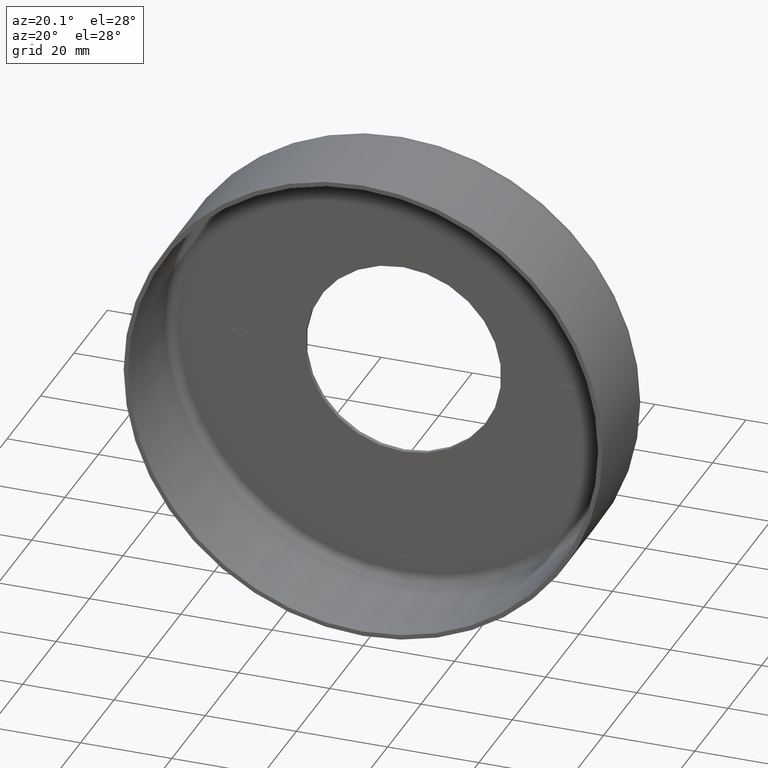
[diagram: clean part render]
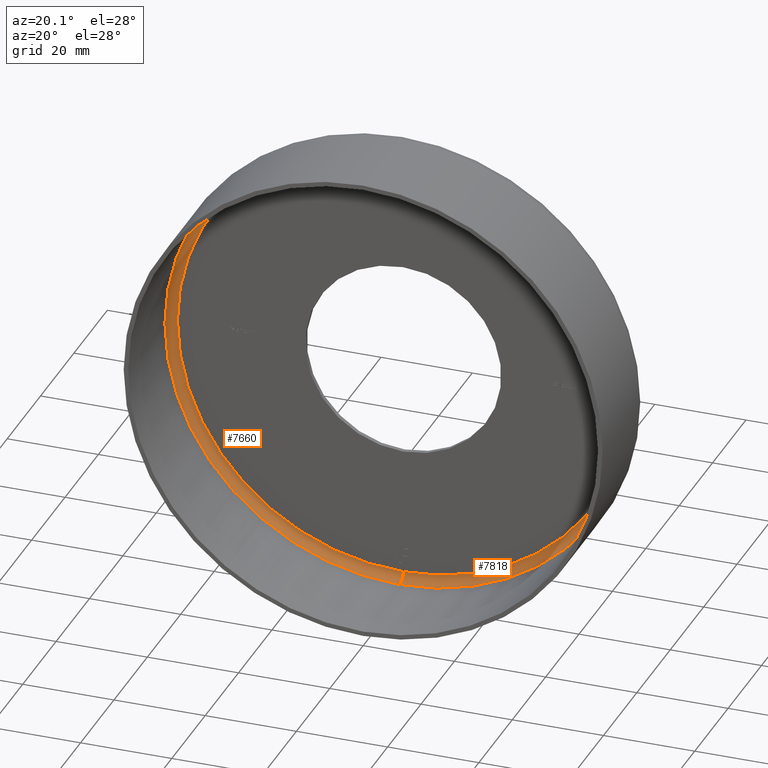
[diagram: same view with one multi-face feature highlighted, each face labeled with its STEP entity id]
A machine part, auxiliary view. The highlighted faces form ONE feature: a constant-radius fillet chain: 2 tangent blend faces with common blend radius 2 mm. The faces share edges in the B-rep.
Their STEP definitions:
[1] entity #7818 (Torus):
#5 = ORIENTED_EDGE ( 'NONE', *, *, #3750, .F. ) ;
#108 = ORIENTED_EDGE ( 'NONE', *, *, #2203, .T. ) ;
#111 = AXIS2_PLACEMENT_3D ( 'NONE', #9158, #14057, #6605 ) ;
#143 = CIRCLE ( 'NONE', #1248, 51.50000000000000711 ) ;
#405 = CARTESIAN_POINT ( 'NONE',  ( 0.000000000000000000, 22.00000000000000355, -51.50000000000000711 ) ) ;
#1248 = AXIS2_PLACEMENT_3D ( 'NONE', #1702, #10227, #5372 ) ;
#1643 = FACE_OUTER_BOUND ( 'NONE', #10501, .T. ) ;
#1702 = CARTESIAN_POINT ( 'NONE',  ( 0.000000000000000000, 22.00000000000000355, 0.000000000000000000 ) ) ;
#2203 = EDGE_CURVE ( 'NONE', #12375, #10567, #8563, .T. ) ;
#2741 = AXIS2_PLACEMENT_3D ( 'NONE', #2918, #12757, #7657 ) ;
#2918 = CARTESIAN_POINT ( 'NONE',  ( 0.000000000000000000, 24.00000000000000000, 0.000000000000000000 ) ) ;
#3040 = DIRECTION ( 'NONE',  ( -1.000000000000000000, 0.000000000000000000, 0.000000000000000000 ) ) ;
#3149 = DIRECTION ( 'NONE',  ( 0.000000000000000000, 0.000000000000000000, -1.000000000000000000 ) ) ;
#3750 = EDGE_CURVE ( 'NONE', #12375, #15474, #15022, .T. ) ;
#3912 = CARTESIAN_POINT ( 'NONE',  ( 6.306931015608869596E-15, 22.00000000000000355, 51.50000000000000711 ) ) ;
#4994 = ORIENTED_EDGE ( 'NONE', *, *, #5278, .F. ) ;
#5278 = EDGE_CURVE ( 'NONE', #15474, #11287, #9861, .T. ) ;
#5346 = EDGE_CURVE ( 'NONE', #10567, #11287, #143, .T. ) ;
#5372 = DIRECTION ( 'NONE',  ( 0.000000000000000000, 0.000000000000000000, -1.000000000000000000 ) ) ;
#5376 = CARTESIAN_POINT ( 'NONE',  ( 0.000000000000000000, 22.00000000000000355, -49.50000000000000000 ) ) ;
#5557 = CARTESIAN_POINT ( 'NONE',  ( 0.000000000000000000, 24.00000000000000000, -49.50000000000000000 ) ) ;
#6605 = DIRECTION ( 'NONE',  ( -1.224646799147353454E-16, 0.000000000000000000, -1.000000000000000000 ) ) ;
#6985 = TOROIDAL_SURFACE ( 'NONE', #8281, 49.50000000000000000, 2.000000000000000000 ) ;
#7657 = DIRECTION ( 'NONE',  ( 0.000000000000000000, 0.000000000000000000, -1.000000000000000000 ) ) ;
#7818 = ADVANCED_FACE ( 'NONE', ( #1643 ), #6985, .F. ) ;
#7896 = DIRECTION ( 'NONE',  ( -0.000000000000000000, -1.000000000000000000, -0.000000000000000000 ) ) ;
#8281 = AXIS2_PLACEMENT_3D ( 'NONE', #15108, #7896, #3149 ) ;
#8563 = CIRCLE ( 'NONE', #12838, 2.000000000000001776 ) ;
#9158 = CARTESIAN_POINT ( 'NONE',  ( 6.062001655779398511E-15, 22.00000000000000355, 49.50000000000000000 ) ) ;
#9861 = CIRCLE ( 'NONE', #111, 2.000000000000001776 ) ;
#10227 = DIRECTION ( 'NONE',  ( -0.000000000000000000, -1.000000000000000000, -0.000000000000000000 ) ) ;
#10231 = DIRECTION ( 'NONE',  ( 0.000000000000000000, 0.000000000000000000, 1.000000000000000000 ) ) ;
#10501 = EDGE_LOOP ( 'NONE', ( #4994, #5, #108, #12802 ) ) ;
#10567 = VERTEX_POINT ( 'NONE', #405 ) ;
#11287 = VERTEX_POINT ( 'NONE', #3912 ) ;
#11715 = CARTESIAN_POINT ( 'NONE',  ( 6.184466335694133659E-15, 24.00000000000000000, 49.50000000000000000 ) ) ;
#12375 = VERTEX_POINT ( 'NONE', #5557 ) ;
#12757 = DIRECTION ( 'NONE',  ( -0.000000000000000000, -1.000000000000000000, -0.000000000000000000 ) ) ;
#12802 = ORIENTED_EDGE ( 'NONE', *, *, #5346, .T. ) ;
#12838 = AXIS2_PLACEMENT_3D ( 'NONE', #5376, #3040, #10231 ) ;
#14057 = DIRECTION ( 'NONE',  ( 1.000000000000000000, 0.000000000000000000, -1.224646799147353207E-16 ) ) ;
#15022 = CIRCLE ( 'NONE', #2741, 49.50000000000000000 ) ;
#15108 = CARTESIAN_POINT ( 'NONE',  ( 0.000000000000000000, 22.00000000000000355, 0.000000000000000000 ) ) ;
#15474 = VERTEX_POINT ( 'NONE', #11715 ) ;
[2] entity #7660 (Torus):
#111 = AXIS2_PLACEMENT_3D ( 'NONE', #9158, #14057, #6605 ) ;
#230 = AXIS2_PLACEMENT_3D ( 'NONE', #8848, #11292, #6294 ) ;
#405 = CARTESIAN_POINT ( 'NONE',  ( 0.000000000000000000, 22.00000000000000355, -51.50000000000000711 ) ) ;
#1279 = EDGE_LOOP ( 'NONE', ( #10785, #15052, #12713, #13518 ) ) ;
#1667 = EDGE_CURVE ( 'NONE', #15474, #12375, #14303, .T. ) ;
#2203 = EDGE_CURVE ( 'NONE', #12375, #10567, #8563, .T. ) ;
#2511 = DIRECTION ( 'NONE',  ( 0.000000000000000000, 0.000000000000000000, -1.000000000000000000 ) ) ;
#2527 = CARTESIAN_POINT ( 'NONE',  ( 0.000000000000000000, 24.00000000000000000, 0.000000000000000000 ) ) ;
#3040 = DIRECTION ( 'NONE',  ( -1.000000000000000000, 0.000000000000000000, 0.000000000000000000 ) ) ;
#3557 = CIRCLE ( 'NONE', #13876, 51.50000000000000711 ) ;
#3912 = CARTESIAN_POINT ( 'NONE',  ( 6.306931015608869596E-15, 22.00000000000000355, 51.50000000000000711 ) ) ;
#4813 = CARTESIAN_POINT ( 'NONE',  ( 0.000000000000000000, 22.00000000000000355, 0.000000000000000000 ) ) ;
#5269 = FACE_OUTER_BOUND ( 'NONE', #1279, .T. ) ;
#5278 = EDGE_CURVE ( 'NONE', #15474, #11287, #9861, .T. ) ;
#5376 = CARTESIAN_POINT ( 'NONE',  ( 0.000000000000000000, 22.00000000000000355, -49.50000000000000000 ) ) ;
#5557 = CARTESIAN_POINT ( 'NONE',  ( 0.000000000000000000, 24.00000000000000000, -49.50000000000000000 ) ) ;
#6294 = DIRECTION ( 'NONE',  ( 0.000000000000000000, 0.000000000000000000, -1.000000000000000000 ) ) ;
#6605 = DIRECTION ( 'NONE',  ( -1.224646799147353454E-16, 0.000000000000000000, -1.000000000000000000 ) ) ;
#6997 = EDGE_CURVE ( 'NONE', #11287, #10567, #3557, .T. ) ;
#7333 = DIRECTION ( 'NONE',  ( 0.000000000000000000, 0.000000000000000000, -1.000000000000000000 ) ) ;
#7638 = DIRECTION ( 'NONE',  ( -0.000000000000000000, -1.000000000000000000, -0.000000000000000000 ) ) ;
#7660 = ADVANCED_FACE ( 'NONE', ( #5269 ), #10987, .F. ) ;
#8563 = CIRCLE ( 'NONE', #12838, 2.000000000000001776 ) ;
#8848 = CARTESIAN_POINT ( 'NONE',  ( 0.000000000000000000, 22.00000000000000355, 0.000000000000000000 ) ) ;
#8960 = AXIS2_PLACEMENT_3D ( 'NONE', #2527, #9725, #7333 ) ;
#9158 = CARTESIAN_POINT ( 'NONE',  ( 6.062001655779398511E-15, 22.00000000000000355, 49.50000000000000000 ) ) ;
#9725 = DIRECTION ( 'NONE',  ( -0.000000000000000000, -1.000000000000000000, -0.000000000000000000 ) ) ;
#9861 = CIRCLE ( 'NONE', #111, 2.000000000000001776 ) ;
#10231 = DIRECTION ( 'NONE',  ( 0.000000000000000000, 0.000000000000000000, 1.000000000000000000 ) ) ;
#10567 = VERTEX_POINT ( 'NONE', #405 ) ;
#10785 = ORIENTED_EDGE ( 'NONE', *, *, #1667, .F. ) ;
#10987 = TOROIDAL_SURFACE ( 'NONE', #230, 49.50000000000000000, 2.000000000000000000 ) ;
#11287 = VERTEX_POINT ( 'NONE', #3912 ) ;
#11292 = DIRECTION ( 'NONE',  ( -0.000000000000000000, -1.000000000000000000, -0.000000000000000000 ) ) ;
#11715 = CARTESIAN_POINT ( 'NONE',  ( 6.184466335694133659E-15, 24.00000000000000000, 49.50000000000000000 ) ) ;
#12375 = VERTEX_POINT ( 'NONE', #5557 ) ;
#12713 = ORIENTED_EDGE ( 'NONE', *, *, #6997, .T. ) ;
#12838 = AXIS2_PLACEMENT_3D ( 'NONE', #5376, #3040, #10231 ) ;
#13518 = ORIENTED_EDGE ( 'NONE', *, *, #2203, .F. ) ;
#13876 = AXIS2_PLACEMENT_3D ( 'NONE', #4813, #7638, #2511 ) ;
#14057 = DIRECTION ( 'NONE',  ( 1.000000000000000000, 0.000000000000000000, -1.224646799147353207E-16 ) ) ;
#14303 = CIRCLE ( 'NONE', #8960, 49.50000000000000000 ) ;
#15052 = ORIENTED_EDGE ( 'NONE', *, *, #5278, .T. ) ;
#15474 = VERTEX_POINT ( 'NONE', #11715 ) ;